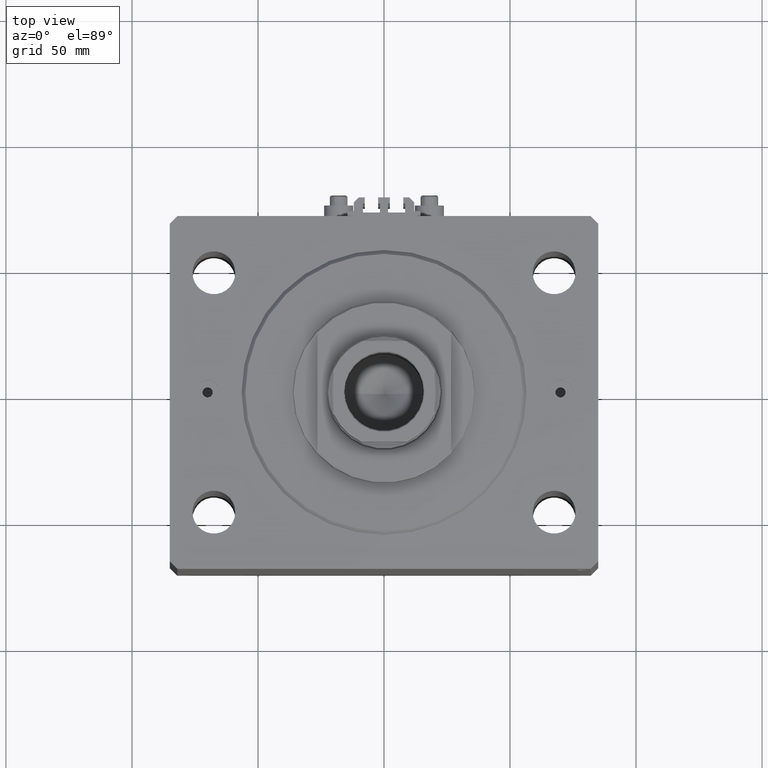
[diagram: clean part render]
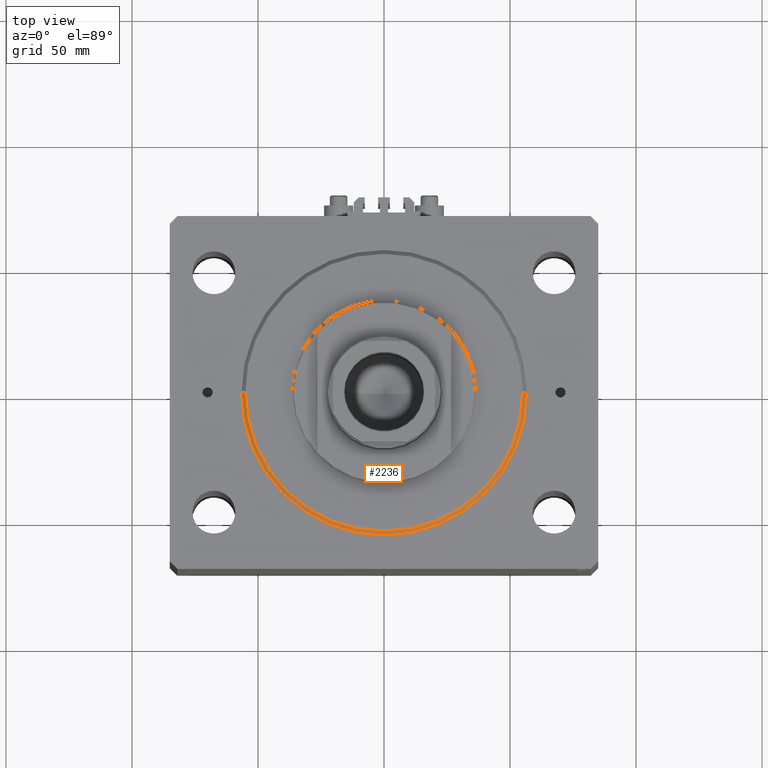
[diagram: same view with one face highlighted and labeled with its STEP entity id]
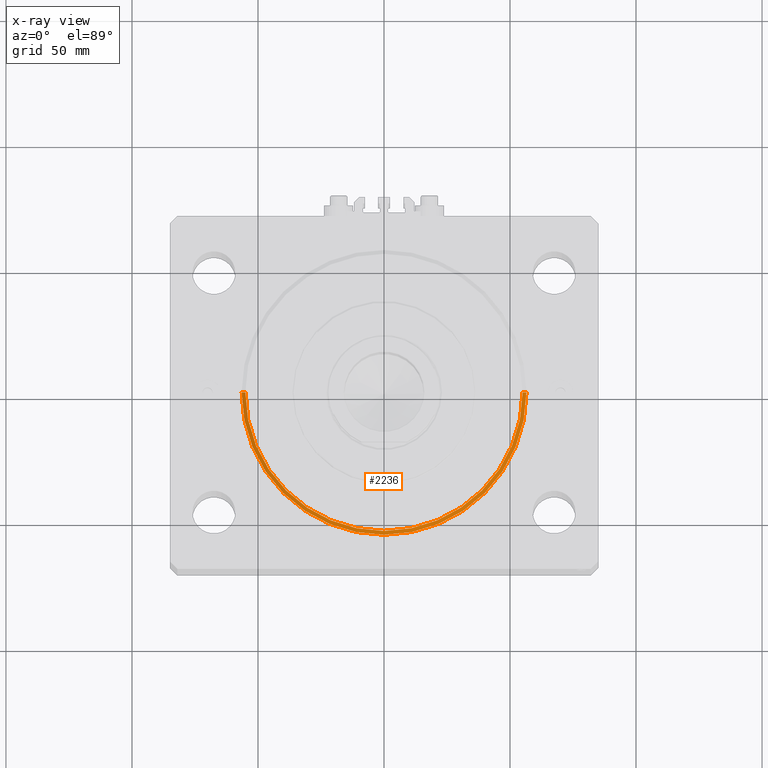
[diagram: x-ray of the same camera — body ghosted, the highlighted face saturated]
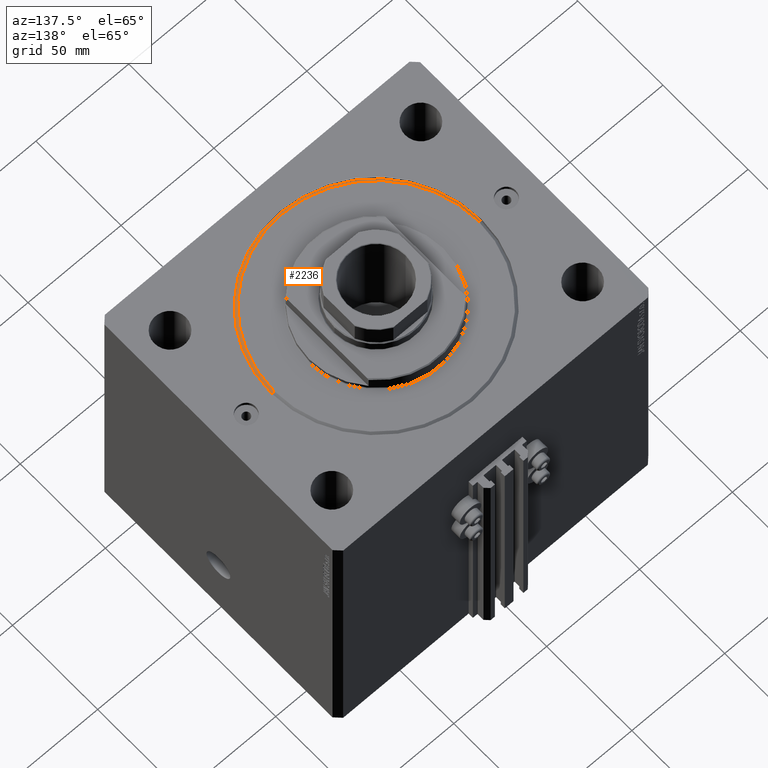
[diagram: same view with one face highlighted and labeled with its STEP entity id]
A machine part, top view. The second image highlights one B-rep face of the part: STEP entity #2236.
The next image is the same camera in x-ray: the body ghosted, the highlighted face saturated — about 0% of this face is hidden behind the body in this view.
A second angle (auxiliary view) of the same face is appended — the face is thin or edge-on in the first view.
In plain terms, the highlighted conical surface has half-angle 45 deg.
Its self-contained STEP definition (entity closure, byte-faithful):
#2236 = ADVANCED_FACE ( 'NONE', ( #20519 ), #8643, .T. ) ;
#2549 = DIRECTION ( 'NONE',  ( 0.7071067811865459074, 0.000000000000000000, 0.7071067811865491270 ) ) ;
#2872 = DIRECTION ( 'NONE',  ( -0.7071067811865459074, 8.659560562354911904E-17, 0.7071067811865491270 ) ) ;
#2965 = CIRCLE ( 'NONE', #36500, 56.50000000000000711 ) ;
#4341 = ORIENTED_EDGE ( 'NONE', *, *, #36412, .F. ) ;
#5952 = EDGE_CURVE ( 'NONE', #11346, #22897, #35491, .T. ) ;
#6097 = CARTESIAN_POINT ( 'NONE',  ( 56.50000000000000711, 6.919254415182546126E-15, 1.499999999999994449 ) ) ;
#6487 = VERTEX_POINT ( 'NONE', #12406 ) ;
#7913 = CARTESIAN_POINT ( 'NONE',  ( 0.000000000000000000, 0.000000000000000000, 1.499999999999994449 ) ) ;
#8532 = ORIENTED_EDGE ( 'NONE', *, *, #5952, .T. ) ;
#8643 = CONICAL_SURFACE ( 'NONE', #10913, 56.50000000000000711, 0.7853981633974460586 ) ;
#9129 = VECTOR ( 'NONE', #2872, 1000.000000000000000 ) ;
#9329 = EDGE_LOOP ( 'NONE', ( #39570, #29261, #8532, #4341 ) ) ;
#10384 = CARTESIAN_POINT ( 'NONE',  ( -56.50000000000000711, 0.000000000000000000, 1.499999999999994449 ) ) ;
#10913 = AXIS2_PLACEMENT_3D ( 'NONE', #16499, #20751, #16268 ) ;
#11346 = VERTEX_POINT ( 'NONE', #34050 ) ;
#12406 = CARTESIAN_POINT ( 'NONE',  ( -55.00000000000002132, 6.827405905246496343E-15, 0.000000000000000000 ) ) ;
#16268 = DIRECTION ( 'NONE',  ( 1.000000000000000000, 0.000000000000000000, 0.000000000000000000 ) ) ;
#16499 = CARTESIAN_POINT ( 'NONE',  ( 0.000000000000000000, 0.000000000000000000, 1.499999999999994449 ) ) ;
#17801 = CARTESIAN_POINT ( 'NONE',  ( 56.50000000000000711, 0.000000000000000000, 1.499999999999994449 ) ) ;
#19961 = CIRCLE ( 'NONE', #20728, 55.00000000000002132 ) ;
#20081 = VERTEX_POINT ( 'NONE', #10384 ) ;
#20519 = FACE_OUTER_BOUND ( 'NONE', #9329, .T. ) ;
#20728 = AXIS2_PLACEMENT_3D ( 'NONE', #22539, #29478, #44740 ) ;
#20751 = DIRECTION ( 'NONE',  ( -0.000000000000000000, -0.000000000000000000, 1.000000000000000000 ) ) ;
#22539 = CARTESIAN_POINT ( 'NONE',  ( 0.000000000000000000, 0.000000000000000000, 0.000000000000000000 ) ) ;
#22897 = VERTEX_POINT ( 'NONE', #6097 ) ;
#25244 = EDGE_CURVE ( 'NONE', #11346, #6487, #19961, .T. ) ;
#29261 = ORIENTED_EDGE ( 'NONE', *, *, #25244, .F. ) ;
#29321 = VECTOR ( 'NONE', #2549, 1000.000000000000000 ) ;
#29478 = DIRECTION ( 'NONE',  ( -0.000000000000000000, -0.000000000000000000, -1.000000000000000000 ) ) ;
#32241 = CARTESIAN_POINT ( 'NONE',  ( -56.50000000000000711, 6.919254415182546126E-15, 1.499999999999994449 ) ) ;
#32761 = DIRECTION ( 'NONE',  ( 1.000000000000000000, 0.000000000000000000, 0.000000000000000000 ) ) ;
#33646 = EDGE_CURVE ( 'NONE', #6487, #20081, #37800, .T. ) ;
#34050 = CARTESIAN_POINT ( 'NONE',  ( 55.00000000000002132, 0.000000000000000000, 0.000000000000000000 ) ) ;
#35491 = LINE ( 'NONE', #17801, #29321 ) ;
#36412 = EDGE_CURVE ( 'NONE', #20081, #22897, #2965, .T. ) ;
#36500 = AXIS2_PLACEMENT_3D ( 'NONE', #7913, #44669, #32761 ) ;
#37800 = LINE ( 'NONE', #32241, #9129 ) ;
#39570 = ORIENTED_EDGE ( 'NONE', *, *, #33646, .F. ) ;
#44669 = DIRECTION ( 'NONE',  ( -0.000000000000000000, -0.000000000000000000, 1.000000000000000000 ) ) ;
#44740 = DIRECTION ( 'NONE',  ( 1.000000000000000000, 0.000000000000000000, 0.000000000000000000 ) ) ;